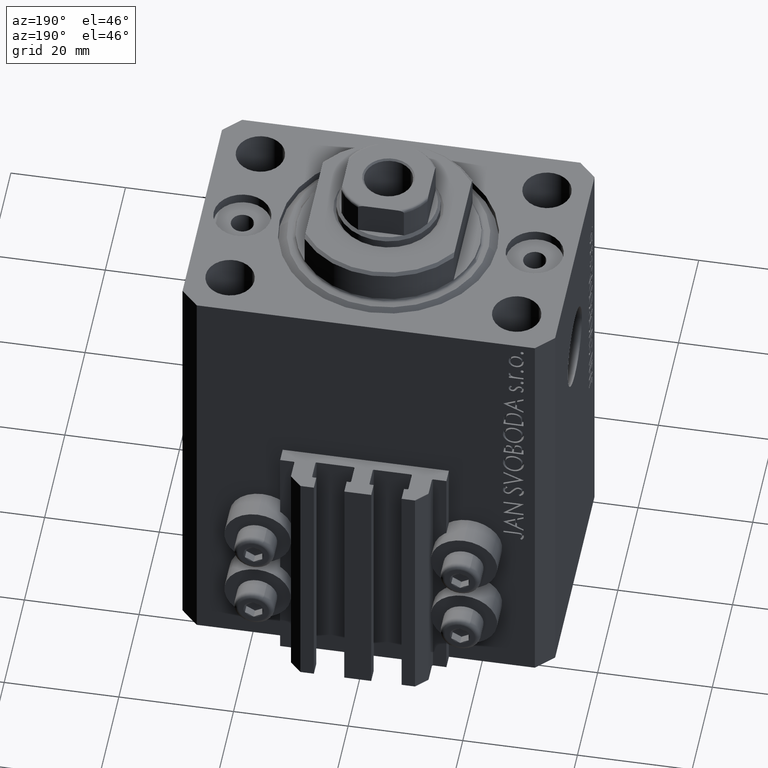
[diagram: clean part render]
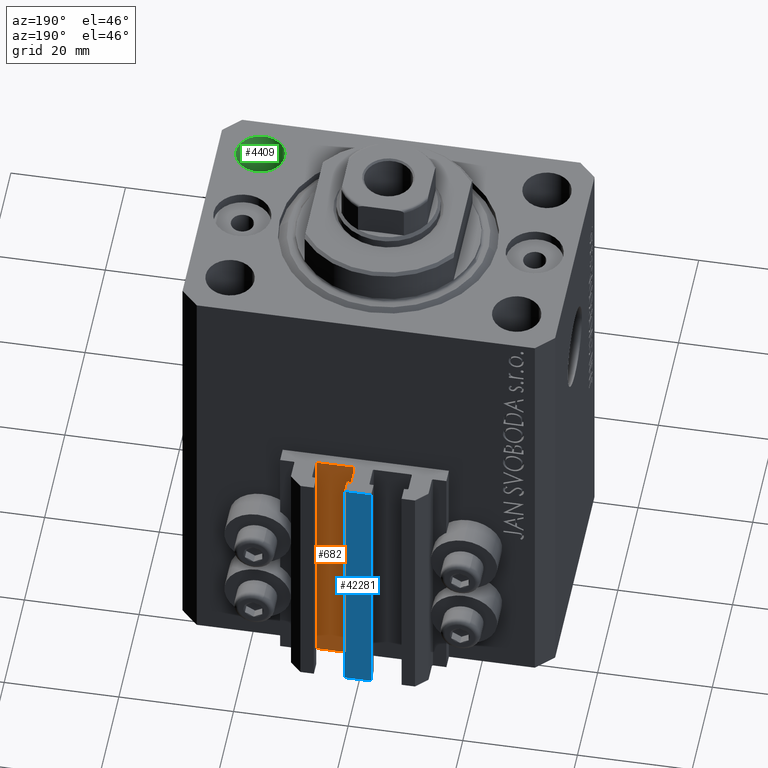
[diagram: same view with three faces highlighted in distinct colors, each labeled with its STEP entity id]
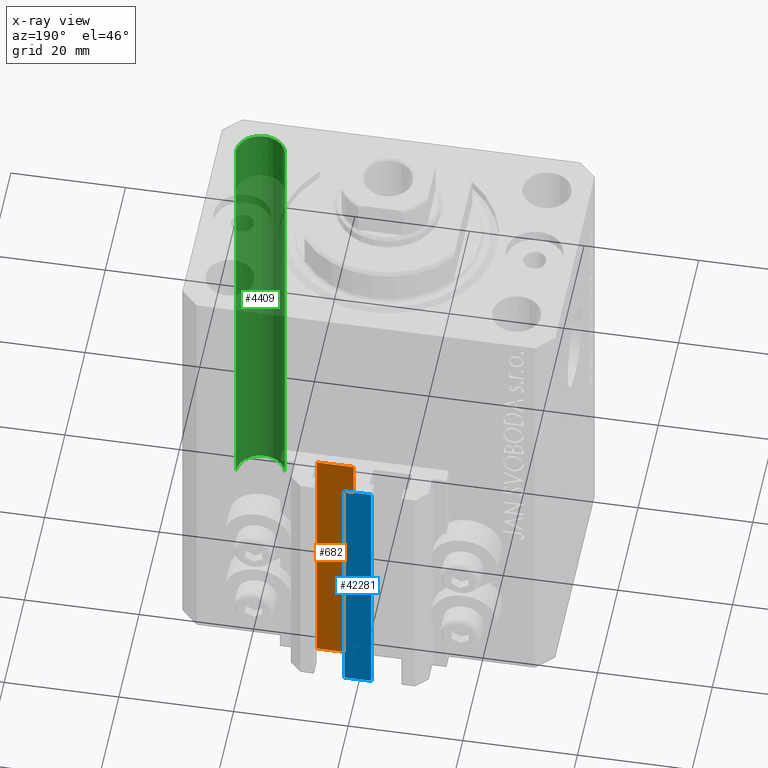
[diagram: x-ray of the same camera — body ghosted, the three highlighted faces saturated]
A machine part, auxiliary view with three faces highlighted in distinct colors.
The next image is the same camera in x-ray (body ghosted, the three faces saturated) — at least one of them is partly hidden behind the body in this view.
Their STEP definitions:

[orange] entity #682 — the highlighted planar face has unit normal (0, 1, 0).
#682 = ADVANCED_FACE ( 'NONE', ( #26500 ), #1448, .T. ) ;
#887 = EDGE_CURVE ( 'NONE', #1912, #24374, #5205, .T. ) ;
#1448 = PLANE ( 'NONE',  #14009 ) ;
#1720 = EDGE_CURVE ( 'NONE', #8030, #1912, #13622, .T. ) ;
#1912 = VERTEX_POINT ( 'NONE', #22642 ) ;
#2886 = DIRECTION ( 'NONE',  ( -1.000000000000000000, 0.000000000000000000, 0.000000000000000000 ) ) ;
#4301 = ORIENTED_EDGE ( 'NONE', *, *, #20930, .F. ) ;
#4743 = VECTOR ( 'NONE', #41500, 1000.000000000000000 ) ;
#5205 = LINE ( 'NONE', #37173, #27734 ) ;
#8030 = VERTEX_POINT ( 'NONE', #25283 ) ;
#11185 = CARTESIAN_POINT ( 'NONE',  ( 8.200000000000001066, 24.49999999999949196, -33.00000000000000000 ) ) ;
#11766 = VECTOR ( 'NONE', #2886, 1000.000000000000000 ) ;
#12405 = LINE ( 'NONE', #26952, #4743 ) ;
#13315 = ORIENTED_EDGE ( 'NONE', *, *, #1720, .T. ) ;
#13580 = EDGE_CURVE ( 'NONE', #8030, #43590, #12405, .T. ) ;
#13622 = LINE ( 'NONE', #35571, #11766 ) ;
#14009 = AXIS2_PLACEMENT_3D ( 'NONE', #40568, #41041, #37938 ) ;
#14518 = LINE ( 'NONE', #11185, #38005 ) ;
#15971 = ORIENTED_EDGE ( 'NONE', *, *, #13580, .F. ) ;
#20930 = EDGE_CURVE ( 'NONE', #43590, #24374, #14518, .T. ) ;
#22642 = CARTESIAN_POINT ( 'NONE',  ( 1.800000000000000933, 24.49999999999949196, -79.00000000000000000 ) ) ;
#22860 = DIRECTION ( 'NONE',  ( 0.000000000000000000, 0.000000000000000000, 1.000000000000000000 ) ) ;
#24374 = VERTEX_POINT ( 'NONE', #45529 ) ;
#25283 = CARTESIAN_POINT ( 'NONE',  ( 8.200000000000001066, 24.49999999999949196, -79.00000000000000000 ) ) ;
#26500 = FACE_OUTER_BOUND ( 'NONE', #40308, .T. ) ;
#26952 = CARTESIAN_POINT ( 'NONE',  ( 8.200000000000001066, 24.49999999999949196, -79.00000000000000000 ) ) ;
#27734 = VECTOR ( 'NONE', #22860, 1000.000000000000000 ) ;
#28839 = DIRECTION ( 'NONE',  ( -1.000000000000000000, 0.000000000000000000, 0.000000000000000000 ) ) ;
#30928 = ORIENTED_EDGE ( 'NONE', *, *, #887, .T. ) ;
#31897 = CARTESIAN_POINT ( 'NONE',  ( 8.200000000000001066, 24.49999999999949196, -33.00000000000000000 ) ) ;
#35571 = CARTESIAN_POINT ( 'NONE',  ( 8.200000000000001066, 24.49999999999949196, -79.00000000000000000 ) ) ;
#37173 = CARTESIAN_POINT ( 'NONE',  ( 1.800000000000000933, 24.49999999999949196, -79.00000000000000000 ) ) ;
#37938 = DIRECTION ( 'NONE',  ( 0.000000000000000000, 0.000000000000000000, 1.000000000000000000 ) ) ;
#38005 = VECTOR ( 'NONE', #28839, 1000.000000000000000 ) ;
#40308 = EDGE_LOOP ( 'NONE', ( #4301, #15971, #13315, #30928 ) ) ;
#40568 = CARTESIAN_POINT ( 'NONE',  ( 8.200000000000001066, 24.49999999999949196, -79.00000000000000000 ) ) ;
#41041 = DIRECTION ( 'NONE',  ( 0.000000000000000000, 1.000000000000000000, -0.000000000000000000 ) ) ;
#41500 = DIRECTION ( 'NONE',  ( 0.000000000000000000, 0.000000000000000000, 1.000000000000000000 ) ) ;
#43590 = VERTEX_POINT ( 'NONE', #31897 ) ;
#45529 = CARTESIAN_POINT ( 'NONE',  ( 1.800000000000000933, 24.49999999999949196, -33.00000000000000000 ) ) ;

[blue] entity #42281 — the highlighted planar face has unit normal (0, -1, 0).
#1159 = DIRECTION ( 'NONE',  ( 0.000000000000000000, -1.000000000000000000, 0.000000000000000000 ) ) ;
#1963 = ORIENTED_EDGE ( 'NONE', *, *, #5768, .F. ) ;
#2906 = CARTESIAN_POINT ( 'NONE',  ( -2.350000000000003197, 30.49999999999949907, -33.00000000000000000 ) ) ;
#3327 = EDGE_CURVE ( 'NONE', #28547, #9395, #24633, .T. ) ;
#5768 = EDGE_CURVE ( 'NONE', #14630, #36299, #23220, .T. ) ;
#6026 = CARTESIAN_POINT ( 'NONE',  ( -2.350000000000003197, 30.49999999999949907, -79.00000000000000000 ) ) ;
#6184 = VECTOR ( 'NONE', #44940, 1000.000000000000000 ) ;
#7184 = DIRECTION ( 'NONE',  ( 1.000000000000000000, 0.000000000000000000, 0.000000000000000000 ) ) ;
#9395 = VERTEX_POINT ( 'NONE', #22052 ) ;
#13346 = EDGE_CURVE ( 'NONE', #9395, #36299, #43220, .T. ) ;
#14630 = VERTEX_POINT ( 'NONE', #17517 ) ;
#15578 = CARTESIAN_POINT ( 'NONE',  ( 2.349999999999999645, 30.49999999999949907, -79.00000000000000000 ) ) ;
#16260 = CARTESIAN_POINT ( 'NONE',  ( 2.349999999999999645, 30.49999999999949907, -33.00000000000000000 ) ) ;
#16532 = DIRECTION ( 'NONE',  ( 0.000000000000000000, 0.000000000000000000, 1.000000000000000000 ) ) ;
#17517 = CARTESIAN_POINT ( 'NONE',  ( 2.349999999999999645, 30.49999999999949907, -79.00000000000000000 ) ) ;
#18943 = EDGE_CURVE ( 'NONE', #28547, #14630, #34327, .T. ) ;
#19143 = ORIENTED_EDGE ( 'NONE', *, *, #3327, .T. ) ;
#22052 = CARTESIAN_POINT ( 'NONE',  ( -2.350000000000003197, 30.49999999999949907, -33.00000000000000000 ) ) ;
#23220 = LINE ( 'NONE', #15578, #6184 ) ;
#24633 = LINE ( 'NONE', #6026, #37792 ) ;
#26215 = PLANE ( 'NONE',  #33192 ) ;
#26682 = DIRECTION ( 'NONE',  ( 0.000000000000000000, -0.000000000000000000, -1.000000000000000000 ) ) ;
#28547 = VERTEX_POINT ( 'NONE', #46188 ) ;
#29566 = CARTESIAN_POINT ( 'NONE',  ( -2.350000000000003197, 30.49999999999949907, -79.00000000000000000 ) ) ;
#29880 = VECTOR ( 'NONE', #7184, 1000.000000000000000 ) ;
#33192 = AXIS2_PLACEMENT_3D ( 'NONE', #29566, #1159, #26682 ) ;
#33591 = ORIENTED_EDGE ( 'NONE', *, *, #18943, .F. ) ;
#34327 = LINE ( 'NONE', #45786, #45591 ) ;
#34800 = DIRECTION ( 'NONE',  ( 1.000000000000000000, 0.000000000000000000, 0.000000000000000000 ) ) ;
#35882 = ORIENTED_EDGE ( 'NONE', *, *, #13346, .T. ) ;
#36299 = VERTEX_POINT ( 'NONE', #16260 ) ;
#37792 = VECTOR ( 'NONE', #16532, 1000.000000000000000 ) ;
#39043 = EDGE_LOOP ( 'NONE', ( #35882, #1963, #33591, #19143 ) ) ;
#42281 = ADVANCED_FACE ( 'NONE', ( #45069 ), #26215, .F. ) ;
#43220 = LINE ( 'NONE', #2906, #29880 ) ;
#44940 = DIRECTION ( 'NONE',  ( 0.000000000000000000, 0.000000000000000000, 1.000000000000000000 ) ) ;
#45069 = FACE_OUTER_BOUND ( 'NONE', #39043, .T. ) ;
#45591 = VECTOR ( 'NONE', #34800, 1000.000000000000000 ) ;
#45786 = CARTESIAN_POINT ( 'NONE',  ( -2.350000000000003197, 30.49999999999949907, -79.00000000000000000 ) ) ;
#46188 = CARTESIAN_POINT ( 'NONE',  ( -2.350000000000003197, 30.49999999999949907, -79.00000000000000000 ) ) ;

[green] entity #4409 — the highlighted cylindrical surface (edge-blend (fillet) strip) has radius 4.25 mm, axis along (0, 0, 1).
#1230 = ORIENTED_EDGE ( 'NONE', *, *, #3287, .T. ) ;
#3287 = EDGE_CURVE ( 'NONE', #24191, #19933, #35524, .T. ) ;
#4139 = ORIENTED_EDGE ( 'NONE', *, *, #28215, .F. ) ;
#4409 = ADVANCED_FACE ( 'NONE', ( #32900 ), #29101, .F. ) ;
#5244 = LINE ( 'NONE', #31007, #26885 ) ;
#5421 = DIRECTION ( 'NONE',  ( 0.000000000000000000, 0.000000000000000000, 1.000000000000000000 ) ) ;
#5787 = ORIENTED_EDGE ( 'NONE', *, *, #16042, .T. ) ;
#7157 = DIRECTION ( 'NONE',  ( -0.000000000000000000, -0.000000000000000000, 1.000000000000000000 ) ) ;
#8360 = EDGE_LOOP ( 'NONE', ( #1230, #5787, #8535, #4139 ) ) ;
#8535 = ORIENTED_EDGE ( 'NONE', *, *, #24489, .T. ) ;
#8676 = CARTESIAN_POINT ( 'NONE',  ( 29.24999999997631051, -15.00000000000000355, -79.00000000000000000 ) ) ;
#10741 = CARTESIAN_POINT ( 'NONE',  ( 24.99999999999999289, -15.00000000000000355, -91.02081528028548973 ) ) ;
#11398 = AXIS2_PLACEMENT_3D ( 'NONE', #10741, #7157, #13847 ) ;
#12355 = DIRECTION ( 'NONE',  ( 1.000000000000000000, 0.000000000000000000, 0.000000000000000000 ) ) ;
#13847 = DIRECTION ( 'NONE',  ( 1.000000000000000000, 0.000000000000000000, 0.000000000000000000 ) ) ;
#15642 = CARTESIAN_POINT ( 'NONE',  ( 29.24999999997631051, -15.00000000000000355, 0.000000000000000000 ) ) ;
#16042 = EDGE_CURVE ( 'NONE', #19933, #27659, #5244, .T. ) ;
#16048 = AXIS2_PLACEMENT_3D ( 'NONE', #38103, #5421, #12355 ) ;
#18919 = DIRECTION ( 'NONE',  ( -0.000000000000000000, -0.000000000000000000, -1.000000000000000000 ) ) ;
#19172 = VECTOR ( 'NONE', #24752, 1000.000000000000000 ) ;
#19933 = VERTEX_POINT ( 'NONE', #34277 ) ;
#24191 = VERTEX_POINT ( 'NONE', #8676 ) ;
#24489 = EDGE_CURVE ( 'NONE', #27659, #28376, #43469, .T. ) ;
#24752 = DIRECTION ( 'NONE',  ( -0.000000000000000000, -0.000000000000000000, 1.000000000000000000 ) ) ;
#26885 = VECTOR ( 'NONE', #45346, 1000.000000000000000 ) ;
#27659 = VERTEX_POINT ( 'NONE', #37111 ) ;
#28215 = EDGE_CURVE ( 'NONE', #24191, #28376, #46473, .T. ) ;
#28376 = VERTEX_POINT ( 'NONE', #15642 ) ;
#29101 = CYLINDRICAL_SURFACE ( 'NONE', #11398, 4.249999999976314058 ) ;
#30164 = AXIS2_PLACEMENT_3D ( 'NONE', #33949, #18919, #30366 ) ;
#30366 = DIRECTION ( 'NONE',  ( 1.000000000000000000, 0.000000000000000000, 0.000000000000000000 ) ) ;
#31007 = CARTESIAN_POINT ( 'NONE',  ( 20.75000000002367884, -15.00000000000000355, -91.02081528028548973 ) ) ;
#32138 = CARTESIAN_POINT ( 'NONE',  ( 29.24999999997631051, -15.00000000000000355, -91.02081528028548973 ) ) ;
#32900 = FACE_OUTER_BOUND ( 'NONE', #8360, .T. ) ;
#33949 = CARTESIAN_POINT ( 'NONE',  ( 24.99999999999999289, -15.00000000000000355, -79.00000000000000000 ) ) ;
#34277 = CARTESIAN_POINT ( 'NONE',  ( 20.75000000002367884, -15.00000000000000355, -79.00000000000000000 ) ) ;
#35524 = CIRCLE ( 'NONE', #30164, 4.249999999976314058 ) ;
#37111 = CARTESIAN_POINT ( 'NONE',  ( 20.75000000002367884, -15.00000000000000355, 0.000000000000000000 ) ) ;
#38103 = CARTESIAN_POINT ( 'NONE',  ( 24.99999999999999289, -15.00000000000000355, 0.000000000000000000 ) ) ;
#43469 = CIRCLE ( 'NONE', #16048, 4.249999999976314058 ) ;
#45346 = DIRECTION ( 'NONE',  ( -0.000000000000000000, -0.000000000000000000, 1.000000000000000000 ) ) ;
#46473 = LINE ( 'NONE', #32138, #19172 ) ;